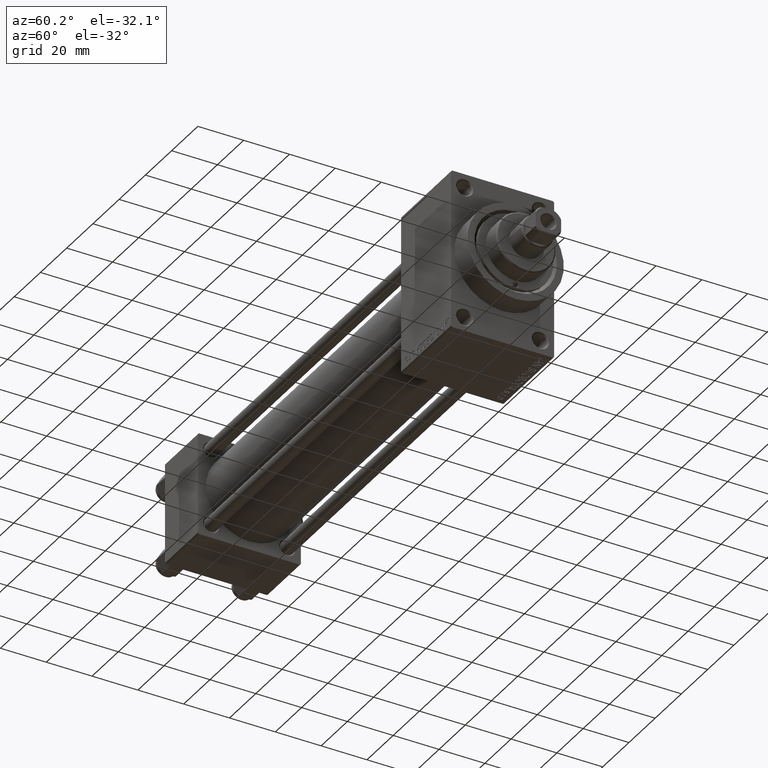
[diagram: clean part render]
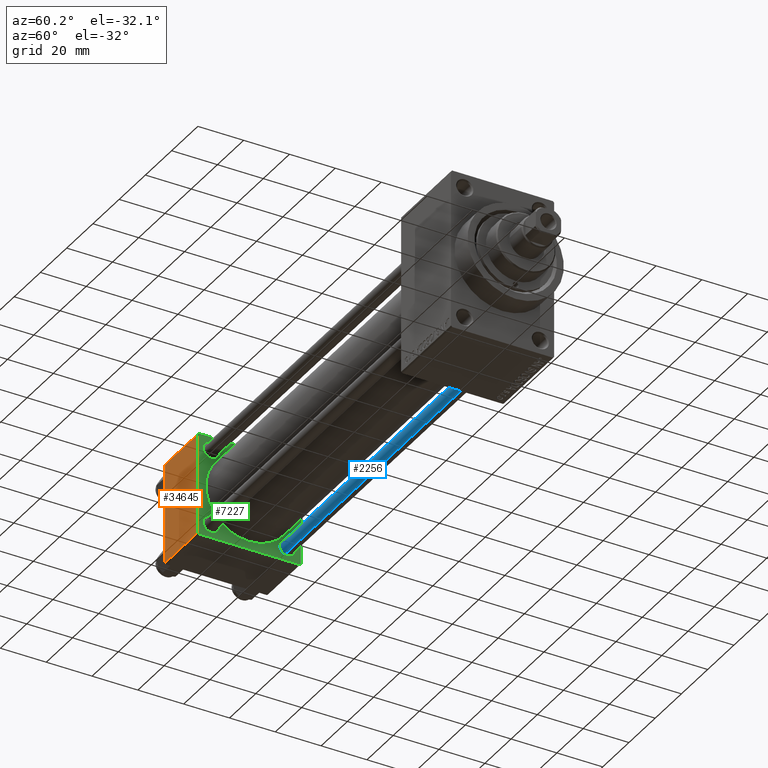
[diagram: same view with three faces highlighted in distinct colors, each labeled with its STEP entity id]
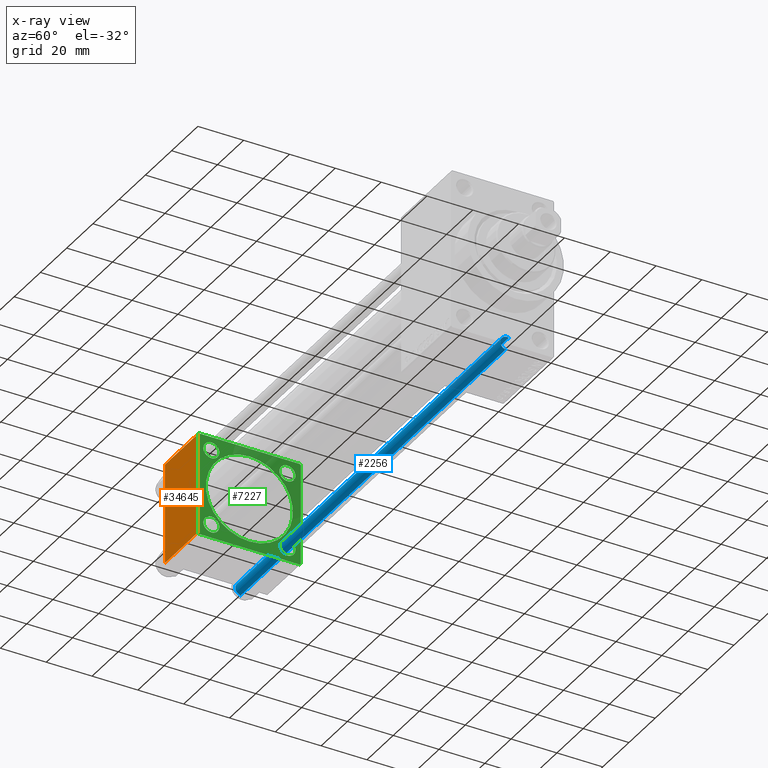
[diagram: x-ray of the same camera — body ghosted, the three highlighted faces saturated]
A machine part, auxiliary view with three faces highlighted in distinct colors.
The next image is the same camera in x-ray (body ghosted, the three faces saturated) — at least one of them is partly hidden behind the body in this view.
Their STEP definitions:

[orange] entity #34645 — the highlighted planar face has unit normal (0, 1, 0).
#1047 = CARTESIAN_POINT ( 'NONE',  ( 0.000000000000000000, -22.50000000000000000, 22.50000000000000000 ) ) ;
#2443 = EDGE_LOOP ( 'NONE', ( #30121, #5235, #2624, #44541 ) ) ;
#2624 = ORIENTED_EDGE ( 'NONE', *, *, #11423, .F. ) ;
#2661 = AXIS2_PLACEMENT_3D ( 'NONE', #45389, #14721, #2743 ) ;
#2743 = DIRECTION ( 'NONE',  ( 0.000000000000000000, -0.000000000000000000, 1.000000000000000000 ) ) ;
#4507 = EDGE_CURVE ( 'NONE', #28372, #36694, #28866, .T. ) ;
#5229 = CARTESIAN_POINT ( 'NONE',  ( 25.00000000000000000, -22.50000000000000000, 22.00000000000000000 ) ) ;
#5235 = ORIENTED_EDGE ( 'NONE', *, *, #4507, .T. ) ;
#8788 = DIRECTION ( 'NONE',  ( 0.000000000000000000, 0.000000000000000000, -1.000000000000000000 ) ) ;
#11423 = EDGE_CURVE ( 'NONE', #31319, #36694, #37602, .T. ) ;
#13466 = VERTEX_POINT ( 'NONE', #18777 ) ;
#14531 = CARTESIAN_POINT ( 'NONE',  ( 0.000000000000000000, -22.50000000000000000, -21.99999999999997158 ) ) ;
#14721 = DIRECTION ( 'NONE',  ( -0.000000000000000000, 1.000000000000000000, 0.000000000000000000 ) ) ;
#15609 = EDGE_CURVE ( 'NONE', #13466, #28372, #42478, .T. ) ;
#17648 = CARTESIAN_POINT ( 'NONE',  ( 25.00000000000000000, -22.50000000000000000, -21.99999999999998579 ) ) ;
#18777 = CARTESIAN_POINT ( 'NONE',  ( 0.000000000000000000, -22.50000000000000000, 22.00000000000000000 ) ) ;
#22549 = EDGE_CURVE ( 'NONE', #31319, #13466, #39411, .T. ) ;
#25615 = DIRECTION ( 'NONE',  ( 1.000000000000000000, 0.000000000000000000, 0.000000000000000000 ) ) ;
#27447 = VECTOR ( 'NONE', #33384, 1000.000000000000000 ) ;
#28372 = VERTEX_POINT ( 'NONE', #14531 ) ;
#28866 = LINE ( 'NONE', #17648, #48853 ) ;
#29686 = PLANE ( 'NONE',  #2661 ) ;
#30121 = ORIENTED_EDGE ( 'NONE', *, *, #15609, .T. ) ;
#31319 = VERTEX_POINT ( 'NONE', #34154 ) ;
#33384 = DIRECTION ( 'NONE',  ( 0.000000000000000000, 0.000000000000000000, -1.000000000000000000 ) ) ;
#34154 = CARTESIAN_POINT ( 'NONE',  ( 25.00000000000000000, -22.50000000000000000, 22.00000000000000000 ) ) ;
#34409 = CARTESIAN_POINT ( 'NONE',  ( 25.00000000000000000, -22.50000000000000000, -21.99999999999997158 ) ) ;
#34645 = ADVANCED_FACE ( 'NONE', ( #44899 ), #29686, .F. ) ;
#36694 = VERTEX_POINT ( 'NONE', #34409 ) ;
#37602 = LINE ( 'NONE', #41592, #27447 ) ;
#39411 = LINE ( 'NONE', #5229, #42980 ) ;
#41592 = CARTESIAN_POINT ( 'NONE',  ( 25.00000000000000000, -22.50000000000000000, 22.50000000000000000 ) ) ;
#42478 = LINE ( 'NONE', #1047, #43563 ) ;
#42980 = VECTOR ( 'NONE', #48368, 1000.000000000000000 ) ;
#43563 = VECTOR ( 'NONE', #8788, 1000.000000000000000 ) ;
#44541 = ORIENTED_EDGE ( 'NONE', *, *, #22549, .T. ) ;
#44899 = FACE_OUTER_BOUND ( 'NONE', #2443, .T. ) ;
#45389 = CARTESIAN_POINT ( 'NONE',  ( 25.00000000000000000, -22.50000000000000000, 22.50000000000000000 ) ) ;
#48368 = DIRECTION ( 'NONE',  ( -1.000000000000000000, 0.000000000000000000, 0.000000000000000000 ) ) ;
#48853 = VECTOR ( 'NONE', #25615, 1000.000000000000000 ) ;

[blue] entity #2256 — the highlighted cylindrical surface (edge-blend (fillet) strip) has radius 3 mm, axis along (1, -0, 0).
#796 = CARTESIAN_POINT ( 'NONE',  ( 3.000000000000000444, 3.673940397442059868E-16, 202.5000000000000853 ) ) ;
#817 = EDGE_CURVE ( 'NONE', #46139, #14098, #32713, .T. ) ;
#2256 = ADVANCED_FACE ( 'NONE', ( #46784 ), #13120, .T. ) ;
#2502 = CARTESIAN_POINT ( 'NONE',  ( -3.000000000000000444, 0.000000000000000000, 203.0000000000000000 ) ) ;
#4734 = VERTEX_POINT ( 'NONE', #27584 ) ;
#4879 = DIRECTION ( 'NONE',  ( -1.000000000000000000, 0.000000000000000000, 0.000000000000000000 ) ) ;
#6267 = EDGE_CURVE ( 'NONE', #4734, #6912, #21222, .T. ) ;
#6912 = VERTEX_POINT ( 'NONE', #14547 ) ;
#9000 = ORIENTED_EDGE ( 'NONE', *, *, #21974, .T. ) ;
#9707 = CARTESIAN_POINT ( 'NONE',  ( 3.000000000000000444, 3.673940397442059868E-16, 0.5000000000001114664 ) ) ;
#10318 = ORIENTED_EDGE ( 'NONE', *, *, #6267, .T. ) ;
#11399 = ORIENTED_EDGE ( 'NONE', *, *, #41618, .T. ) ;
#12101 = DIRECTION ( 'NONE',  ( 1.000000000000000000, 0.000000000000000000, 0.000000000000000000 ) ) ;
#13120 = CYLINDRICAL_SURFACE ( 'NONE', #36040, 3.000000000000000444 ) ;
#14098 = VERTEX_POINT ( 'NONE', #9707 ) ;
#14547 = CARTESIAN_POINT ( 'NONE',  ( -3.000000000000000444, 0.000000000000000000, 0.5000000000001114664 ) ) ;
#18006 = EDGE_LOOP ( 'NONE', ( #40837, #9000, #10318, #11399 ) ) ;
#18453 = VECTOR ( 'NONE', #44433, 1000.000000000000000 ) ;
#18470 = DIRECTION ( 'NONE',  ( 1.000000000000000000, 0.000000000000000000, 0.000000000000000000 ) ) ;
#19613 = AXIS2_PLACEMENT_3D ( 'NONE', #40938, #29957, #18470 ) ;
#21222 = LINE ( 'NONE', #2502, #37745 ) ;
#21974 = EDGE_CURVE ( 'NONE', #46139, #4734, #26249, .T. ) ;
#22591 = CARTESIAN_POINT ( 'NONE',  ( 0.000000000000000000, 0.000000000000000000, 202.5000000000000853 ) ) ;
#26249 = CIRCLE ( 'NONE', #35793, 3.000000000000000444 ) ;
#27584 = CARTESIAN_POINT ( 'NONE',  ( -3.000000000000000444, 0.000000000000000000, 202.5000000000000853 ) ) ;
#29957 = DIRECTION ( 'NONE',  ( -0.000000000000000000, -0.000000000000000000, 1.000000000000000000 ) ) ;
#32201 = DIRECTION ( 'NONE',  ( -0.000000000000000000, -0.000000000000000000, -1.000000000000000000 ) ) ;
#32713 = LINE ( 'NONE', #40941, #18453 ) ;
#35321 = CARTESIAN_POINT ( 'NONE',  ( 0.000000000000000000, 0.000000000000000000, 203.0000000000000000 ) ) ;
#35793 = AXIS2_PLACEMENT_3D ( 'NONE', #22591, #37820, #12101 ) ;
#36040 = AXIS2_PLACEMENT_3D ( 'NONE', #35321, #36061, #4879 ) ;
#36061 = DIRECTION ( 'NONE',  ( -0.000000000000000000, -0.000000000000000000, -1.000000000000000000 ) ) ;
#37745 = VECTOR ( 'NONE', #32201, 1000.000000000000000 ) ;
#37820 = DIRECTION ( 'NONE',  ( 0.000000000000000000, 0.000000000000000000, -1.000000000000000000 ) ) ;
#40837 = ORIENTED_EDGE ( 'NONE', *, *, #817, .F. ) ;
#40938 = CARTESIAN_POINT ( 'NONE',  ( 0.000000000000000000, 0.000000000000000000, 0.5000000000001114664 ) ) ;
#40941 = CARTESIAN_POINT ( 'NONE',  ( 3.000000000000000444, 3.673940397442059868E-16, 203.0000000000000000 ) ) ;
#41137 = CIRCLE ( 'NONE', #19613, 3.000000000000000444 ) ;
#41618 = EDGE_CURVE ( 'NONE', #6912, #14098, #41137, .T. ) ;
#44433 = DIRECTION ( 'NONE',  ( -0.000000000000000000, -0.000000000000000000, -1.000000000000000000 ) ) ;
#46139 = VERTEX_POINT ( 'NONE', #796 ) ;
#46784 = FACE_OUTER_BOUND ( 'NONE', #18006, .T. ) ;

[green] entity #7227 — the highlighted planar face has unit normal (-1, 0, 0).
#773 = EDGE_CURVE ( 'NONE', #1431, #42664, #24481, .T. ) ;
#850 = FACE_BOUND ( 'NONE', #13772, .T. ) ;
#1117 = EDGE_CURVE ( 'NONE', #1431, #26836, #28657, .T. ) ;
#1431 = VERTEX_POINT ( 'NONE', #29060 ) ;
#2019 = DIRECTION ( 'NONE',  ( 0.000000000000000000, 0.000000000000000000, -1.000000000000000000 ) ) ;
#2941 = EDGE_CURVE ( 'NONE', #25247, #45998, #28097, .T. ) ;
#3011 = DIRECTION ( 'NONE',  ( 0.000000000000000000, 0.000000000000000000, 1.000000000000000000 ) ) ;
#3617 = CARTESIAN_POINT ( 'NONE',  ( 25.00000000000000000, 0.000000000000000000, 0.000000000000000000 ) ) ;
#3764 = EDGE_CURVE ( 'NONE', #33546, #31319, #35950, .T. ) ;
#3914 = EDGE_LOOP ( 'NONE', ( #34631, #21096, #34079, #36838, #19873, #46952, #29825, #22114 ) ) ;
#4603 = FACE_BOUND ( 'NONE', #7883, .T. ) ;
#4724 = DIRECTION ( 'NONE',  ( 0.000000000000000000, -0.7071067811865474617, 0.7071067811865474617 ) ) ;
#5242 = LINE ( 'NONE', #27703, #29356 ) ;
#5293 = EDGE_LOOP ( 'NONE', ( #21317, #37458 ) ) ;
#5969 = CIRCLE ( 'NONE', #8363, 3.499999999999975131 ) ;
#6743 = AXIS2_PLACEMENT_3D ( 'NONE', #21541, #41007, #36759 ) ;
#7227 = ADVANCED_FACE ( 'NONE', ( #4603, #42768, #35044, #19075, #850, #16073 ), #31290, .F. ) ;
#7883 = EDGE_LOOP ( 'NONE', ( #49156, #40835 ) ) ;
#8342 = EDGE_CURVE ( 'NONE', #48898, #42664, #20564, .T. ) ;
#8363 = AXIS2_PLACEMENT_3D ( 'NONE', #37437, #21987, #3011 ) ;
#8403 = CARTESIAN_POINT ( 'NONE',  ( 25.00000000000000000, -16.59999999999999076, -13.10000000000000320 ) ) ;
#8498 = DIRECTION ( 'NONE',  ( 0.000000000000000000, 0.000000000000000000, 1.000000000000000000 ) ) ;
#8766 = CARTESIAN_POINT ( 'NONE',  ( 25.00000000000000000, -22.50000000000000000, 22.00000000000000000 ) ) ;
#8830 = CARTESIAN_POINT ( 'NONE',  ( 25.00000000000000000, -16.59999999999999076, 13.10000000000000142 ) ) ;
#10089 = CARTESIAN_POINT ( 'NONE',  ( 24.99999999999999289, -2.602085213965210642E-15, 19.00000000000000000 ) ) ;
#10621 = EDGE_CURVE ( 'NONE', #11819, #18046, #14685, .T. ) ;
#11423 = EDGE_CURVE ( 'NONE', #31319, #36694, #37602, .T. ) ;
#11519 = DIRECTION ( 'NONE',  ( 0.000000000000000000, 0.000000000000000000, 1.000000000000000000 ) ) ;
#11610 = DIRECTION ( 'NONE',  ( -0.000000000000000000, 0.000000000000000000, 1.000000000000000000 ) ) ;
#11819 = VERTEX_POINT ( 'NONE', #48274 ) ;
#12337 = CARTESIAN_POINT ( 'NONE',  ( 25.00000000000000000, -16.59999999999999076, -20.10000000000000853 ) ) ;
#13265 = VERTEX_POINT ( 'NONE', #8830 ) ;
#13692 = VECTOR ( 'NONE', #4724, 1000.000000000000114 ) ;
#13772 = EDGE_LOOP ( 'NONE', ( #17524, #47773 ) ) ;
#14474 = AXIS2_PLACEMENT_3D ( 'NONE', #35813, #28073, #39557 ) ;
#14685 = CIRCLE ( 'NONE', #32221, 3.499999999999975131 ) ;
#14898 = CARTESIAN_POINT ( 'NONE',  ( 24.99999999999999289, -2.752562955852396712E-16, -19.00000000000000000 ) ) ;
#15416 = VERTEX_POINT ( 'NONE', #38549 ) ;
#15742 = DIRECTION ( 'NONE',  ( 0.000000000000000000, 0.7071067811865426878, -0.7071067811865524577 ) ) ;
#15976 = CARTESIAN_POINT ( 'NONE',  ( 25.00000000000000000, -21.99999999999997868, 22.50000000000000000 ) ) ;
#16055 = CIRCLE ( 'NONE', #14474, 3.500000000000003109 ) ;
#16058 = VECTOR ( 'NONE', #2019, 1000.000000000000000 ) ;
#16073 = FACE_OUTER_BOUND ( 'NONE', #3914, .T. ) ;
#16908 = AXIS2_PLACEMENT_3D ( 'NONE', #23448, #42418, #8498 ) ;
#17015 = DIRECTION ( 'NONE',  ( -1.000000000000000000, 0.000000000000000000, -0.000000000000000000 ) ) ;
#17070 = CARTESIAN_POINT ( 'NONE',  ( 25.00000000000000000, -16.59999999999999076, 16.60000000000000853 ) ) ;
#17524 = ORIENTED_EDGE ( 'NONE', *, *, #40788, .F. ) ;
#17928 = VECTOR ( 'NONE', #21053, 1000.000000000000000 ) ;
#17992 = DIRECTION ( 'NONE',  ( 0.000000000000000000, 0.000000000000000000, 1.000000000000000000 ) ) ;
#18046 = VERTEX_POINT ( 'NONE', #34673 ) ;
#18386 = VECTOR ( 'NONE', #35497, 1000.000000000000000 ) ;
#19075 = FACE_BOUND ( 'NONE', #48233, .T. ) ;
#19311 = ORIENTED_EDGE ( 'NONE', *, *, #10621, .T. ) ;
#19533 = EDGE_CURVE ( 'NONE', #36694, #39197, #5242, .T. ) ;
#19873 = ORIENTED_EDGE ( 'NONE', *, *, #25740, .T. ) ;
#20398 = CARTESIAN_POINT ( 'NONE',  ( 25.00000000000000000, 21.99999999999999289, 22.50000000000000355 ) ) ;
#20564 = LINE ( 'NONE', #31790, #17928 ) ;
#20967 = CARTESIAN_POINT ( 'NONE',  ( 24.99999999999999289, -2.602085213965210642E-15, 0.000000000000000000 ) ) ;
#21053 = DIRECTION ( 'NONE',  ( -0.000000000000000000, 0.7071067811865426878, 0.7071067811865524577 ) ) ;
#21096 = ORIENTED_EDGE ( 'NONE', *, *, #8342, .T. ) ;
#21239 = CARTESIAN_POINT ( 'NONE',  ( 25.00000000000000000, 22.50000000000000000, 22.50000000000000355 ) ) ;
#21317 = ORIENTED_EDGE ( 'NONE', *, *, #32715, .T. ) ;
#21541 = CARTESIAN_POINT ( 'NONE',  ( 25.00000000000000000, -16.59999999999999076, 16.60000000000000853 ) ) ;
#21574 = CARTESIAN_POINT ( 'NONE',  ( 25.00000000000000000, -16.59999999999999076, -16.60000000000000853 ) ) ;
#21987 = DIRECTION ( 'NONE',  ( -1.000000000000000000, 0.000000000000000000, -0.000000000000000000 ) ) ;
#22012 = CIRCLE ( 'NONE', #35526, 19.00000000000000000 ) ;
#22114 = ORIENTED_EDGE ( 'NONE', *, *, #19533, .T. ) ;
#23448 = CARTESIAN_POINT ( 'NONE',  ( 25.00000000000000000, 16.59999999999999787, -16.60000000000000497 ) ) ;
#23732 = EDGE_CURVE ( 'NONE', #47367, #44774, #47779, .T. ) ;
#24211 = EDGE_CURVE ( 'NONE', #48898, #39197, #46825, .T. ) ;
#24481 = LINE ( 'NONE', #21239, #16058 ) ;
#25247 = VERTEX_POINT ( 'NONE', #14898 ) ;
#25740 = EDGE_CURVE ( 'NONE', #26836, #33546, #35013, .T. ) ;
#25957 = AXIS2_PLACEMENT_3D ( 'NONE', #39966, #17015, #29235 ) ;
#26836 = VERTEX_POINT ( 'NONE', #20398 ) ;
#27447 = VECTOR ( 'NONE', #33384, 1000.000000000000000 ) ;
#27485 = CIRCLE ( 'NONE', #35461, 3.500000000000006661 ) ;
#27703 = CARTESIAN_POINT ( 'NONE',  ( 25.00000000000000000, -21.99999999999998579, -22.50000000000000711 ) ) ;
#27979 = ORIENTED_EDGE ( 'NONE', *, *, #41742, .T. ) ;
#28004 = EDGE_CURVE ( 'NONE', #44774, #47367, #16055, .T. ) ;
#28073 = DIRECTION ( 'NONE',  ( -1.000000000000000000, 0.000000000000000000, -0.000000000000000000 ) ) ;
#28097 = CIRCLE ( 'NONE', #31267, 19.00000000000000000 ) ;
#28225 = CIRCLE ( 'NONE', #6743, 3.500000000000006661 ) ;
#28537 = DIRECTION ( 'NONE',  ( -1.000000000000000000, 0.000000000000000000, -0.000000000000000000 ) ) ;
#28657 = LINE ( 'NONE', #39399, #13692 ) ;
#29060 = CARTESIAN_POINT ( 'NONE',  ( 25.00000000000000000, 22.50000000000000000, 21.99999999999999645 ) ) ;
#29235 = DIRECTION ( 'NONE',  ( 0.000000000000000000, 0.000000000000000000, 1.000000000000000000 ) ) ;
#29356 = VECTOR ( 'NONE', #15742, 1000.000000000000000 ) ;
#29555 = DIRECTION ( 'NONE',  ( -1.000000000000000000, 0.000000000000000000, -0.000000000000000000 ) ) ;
#29825 = ORIENTED_EDGE ( 'NONE', *, *, #11423, .T. ) ;
#30560 = DIRECTION ( 'NONE',  ( -1.000000000000000000, 0.000000000000000000, -0.000000000000000000 ) ) ;
#31064 = CARTESIAN_POINT ( 'NONE',  ( 25.00000000000000000, 21.99999999999999289, -22.49999999999999645 ) ) ;
#31267 = AXIS2_PLACEMENT_3D ( 'NONE', #20967, #36191, #32697 ) ;
#31290 = PLANE ( 'NONE',  #33024 ) ;
#31319 = VERTEX_POINT ( 'NONE', #34154 ) ;
#31790 = CARTESIAN_POINT ( 'NONE',  ( 25.00000000000000000, 22.50000000000000000, -21.99999999999998224 ) ) ;
#31812 = EDGE_LOOP ( 'NONE', ( #33821, #33043 ) ) ;
#32221 = AXIS2_PLACEMENT_3D ( 'NONE', #48261, #29555, #11519 ) ;
#32565 = DIRECTION ( 'NONE',  ( 0.000000000000000000, 0.000000000000000000, 1.000000000000000000 ) ) ;
#32697 = DIRECTION ( 'NONE',  ( 0.000000000000000000, 0.000000000000000000, 1.000000000000000000 ) ) ;
#32715 = EDGE_CURVE ( 'NONE', #35062, #15416, #33659, .T. ) ;
#33024 = AXIS2_PLACEMENT_3D ( 'NONE', #3617, #30560, #11610 ) ;
#33043 = ORIENTED_EDGE ( 'NONE', *, *, #45975, .T. ) ;
#33384 = DIRECTION ( 'NONE',  ( 0.000000000000000000, 0.000000000000000000, -1.000000000000000000 ) ) ;
#33546 = VERTEX_POINT ( 'NONE', #15976 ) ;
#33659 = CIRCLE ( 'NONE', #16908, 3.499999999999975131 ) ;
#33821 = ORIENTED_EDGE ( 'NONE', *, *, #39255, .T. ) ;
#34079 = ORIENTED_EDGE ( 'NONE', *, *, #773, .F. ) ;
#34115 = CARTESIAN_POINT ( 'NONE',  ( 25.00000000000000000, 16.59999999999999787, -20.09999999999998010 ) ) ;
#34154 = CARTESIAN_POINT ( 'NONE',  ( 25.00000000000000000, -22.50000000000000000, 22.00000000000000000 ) ) ;
#34267 = AXIS2_PLACEMENT_3D ( 'NONE', #21574, #43539, #32565 ) ;
#34409 = CARTESIAN_POINT ( 'NONE',  ( 25.00000000000000000, -22.50000000000000000, -21.99999999999997158 ) ) ;
#34631 = ORIENTED_EDGE ( 'NONE', *, *, #24211, .F. ) ;
#34673 = CARTESIAN_POINT ( 'NONE',  ( 25.00000000000000000, 16.59999999999999787, 20.09999999999998010 ) ) ;
#35013 = LINE ( 'NONE', #46219, #18386 ) ;
#35044 = FACE_BOUND ( 'NONE', #31812, .T. ) ;
#35062 = VERTEX_POINT ( 'NONE', #34115 ) ;
#35461 = AXIS2_PLACEMENT_3D ( 'NONE', #17070, #28537, #43755 ) ;
#35497 = DIRECTION ( 'NONE',  ( 0.000000000000000000, -1.000000000000000000, -7.709882115452476934E-17 ) ) ;
#35526 = AXIS2_PLACEMENT_3D ( 'NONE', #41179, #45401, #17992 ) ;
#35813 = CARTESIAN_POINT ( 'NONE',  ( 25.00000000000000000, -16.59999999999999076, -16.60000000000000853 ) ) ;
#35950 = LINE ( 'NONE', #8766, #36897 ) ;
#36021 = CARTESIAN_POINT ( 'NONE',  ( 25.00000000000000000, 22.50000000000000000, -21.99999999999996803 ) ) ;
#36191 = DIRECTION ( 'NONE',  ( 1.000000000000000000, -0.000000000000000000, 0.000000000000000000 ) ) ;
#36694 = VERTEX_POINT ( 'NONE', #34409 ) ;
#36759 = DIRECTION ( 'NONE',  ( 0.000000000000000000, 0.000000000000000000, 1.000000000000000000 ) ) ;
#36838 = ORIENTED_EDGE ( 'NONE', *, *, #1117, .T. ) ;
#36897 = VECTOR ( 'NONE', #39448, 999.9999999999998863 ) ;
#37437 = CARTESIAN_POINT ( 'NONE',  ( 25.00000000000000000, 16.59999999999999787, 16.60000000000000497 ) ) ;
#37438 = VECTOR ( 'NONE', #39600, 1000.000000000000000 ) ;
#37458 = ORIENTED_EDGE ( 'NONE', *, *, #40448, .T. ) ;
#37602 = LINE ( 'NONE', #41592, #27447 ) ;
#38549 = CARTESIAN_POINT ( 'NONE',  ( 25.00000000000000000, 16.59999999999999787, -13.10000000000002807 ) ) ;
#38706 = CIRCLE ( 'NONE', #25957, 3.499999999999975131 ) ;
#39197 = VERTEX_POINT ( 'NONE', #47231 ) ;
#39255 = EDGE_CURVE ( 'NONE', #13265, #40759, #27485, .T. ) ;
#39399 = CARTESIAN_POINT ( 'NONE',  ( 25.00000000000000000, 21.99999999999999289, 22.50000000000000355 ) ) ;
#39448 = DIRECTION ( 'NONE',  ( -0.000000000000000000, -0.7071067811865525687, -0.7071067811865425767 ) ) ;
#39557 = DIRECTION ( 'NONE',  ( 0.000000000000000000, 0.000000000000000000, 1.000000000000000000 ) ) ;
#39600 = DIRECTION ( 'NONE',  ( 0.000000000000000000, -1.000000000000000000, -2.312964634635742957E-16 ) ) ;
#39966 = CARTESIAN_POINT ( 'NONE',  ( 25.00000000000000000, 16.59999999999999787, -16.60000000000000497 ) ) ;
#40448 = EDGE_CURVE ( 'NONE', #15416, #35062, #38706, .T. ) ;
#40684 = CARTESIAN_POINT ( 'NONE',  ( 25.00000000000000000, -16.59999999999999076, 20.10000000000001208 ) ) ;
#40759 = VERTEX_POINT ( 'NONE', #40684 ) ;
#40788 = EDGE_CURVE ( 'NONE', #45998, #25247, #22012, .T. ) ;
#40835 = ORIENTED_EDGE ( 'NONE', *, *, #23732, .T. ) ;
#41007 = DIRECTION ( 'NONE',  ( -1.000000000000000000, 0.000000000000000000, -0.000000000000000000 ) ) ;
#41179 = CARTESIAN_POINT ( 'NONE',  ( 24.99999999999999289, -2.602085213965210642E-15, 0.000000000000000000 ) ) ;
#41592 = CARTESIAN_POINT ( 'NONE',  ( 25.00000000000000000, -22.50000000000000000, 22.50000000000000000 ) ) ;
#41742 = EDGE_CURVE ( 'NONE', #18046, #11819, #5969, .T. ) ;
#42418 = DIRECTION ( 'NONE',  ( -1.000000000000000000, 0.000000000000000000, -0.000000000000000000 ) ) ;
#42664 = VERTEX_POINT ( 'NONE', #36021 ) ;
#42768 = FACE_BOUND ( 'NONE', #5293, .T. ) ;
#43089 = CARTESIAN_POINT ( 'NONE',  ( 25.00000000000000000, 22.50000000000000000, -22.49999999999999645 ) ) ;
#43539 = DIRECTION ( 'NONE',  ( -1.000000000000000000, 0.000000000000000000, -0.000000000000000000 ) ) ;
#43755 = DIRECTION ( 'NONE',  ( 0.000000000000000000, 0.000000000000000000, 1.000000000000000000 ) ) ;
#44774 = VERTEX_POINT ( 'NONE', #12337 ) ;
#45401 = DIRECTION ( 'NONE',  ( 1.000000000000000000, -0.000000000000000000, 0.000000000000000000 ) ) ;
#45975 = EDGE_CURVE ( 'NONE', #40759, #13265, #28225, .T. ) ;
#45998 = VERTEX_POINT ( 'NONE', #10089 ) ;
#46219 = CARTESIAN_POINT ( 'NONE',  ( 25.00000000000000000, 22.50000000000000000, 22.50000000000000355 ) ) ;
#46825 = LINE ( 'NONE', #43089, #37438 ) ;
#46952 = ORIENTED_EDGE ( 'NONE', *, *, #3764, .T. ) ;
#47231 = CARTESIAN_POINT ( 'NONE',  ( 25.00000000000000000, -21.99999999999997158, -22.50000000000000711 ) ) ;
#47367 = VERTEX_POINT ( 'NONE', #8403 ) ;
#47773 = ORIENTED_EDGE ( 'NONE', *, *, #2941, .F. ) ;
#47779 = CIRCLE ( 'NONE', #34267, 3.500000000000003109 ) ;
#48233 = EDGE_LOOP ( 'NONE', ( #19311, #27979 ) ) ;
#48261 = CARTESIAN_POINT ( 'NONE',  ( 25.00000000000000000, 16.59999999999999787, 16.60000000000000497 ) ) ;
#48274 = CARTESIAN_POINT ( 'NONE',  ( 25.00000000000000000, 16.59999999999999787, 13.10000000000002807 ) ) ;
#48898 = VERTEX_POINT ( 'NONE', #31064 ) ;
#49156 = ORIENTED_EDGE ( 'NONE', *, *, #28004, .T. ) ;